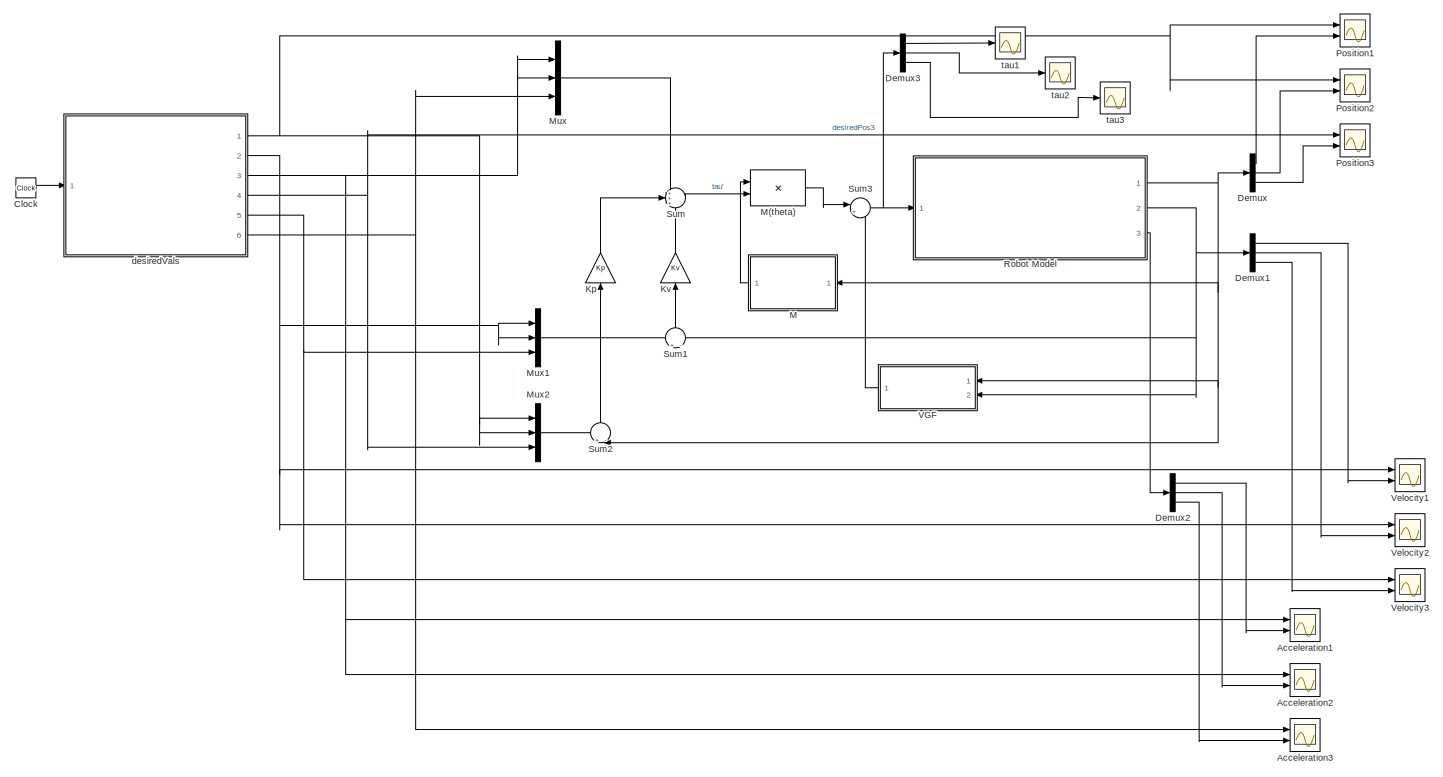
[diagram: root canvas - part 1/1, most of the canvas]
MODEL slx_34e7846e9a22
KIND model
CONFIG AbsTol = auto
CONFIG EnableMultiTasking = off
CONFIG FixedStep = auto
CONFIG MaxStep = auto
CONFIG MinStep = auto
CONFIG RelTol = 1e-3
CONFIG SampleTimeConstraint = Unconstrained
CONFIG SolverName = VariableStepAuto
CONFIG StartTime = 0.0
CONFIG StopTime = 10.0
BLOCK [Scope] Acceleration1
  Floating = off
  NumInputPorts = 2
  Ports = [2]
  ScopeSpecificationString = Simulink.scopes.TimeScopeBlockCfg('CurrentConfiguration', extmgr.ConfigurationSet(extmgr.Configuration('Core','General UI',true),extmgr.Configuration('Core','Source UI',true),extmgr.Configuration('Sources','WiredSimulink',true,'DataLoggingVariableName','ScopeData6'),extmgr.Configuration('Visuals','Time Domain',true,'SerializedDisplays',{struct('MinYLimReal','-742.24281','MaxYLimReal','915.80476','...<+1437ch>
BLOCK [Scope] Acceleration2
  Floating = off
  NumInputPorts = 2
  Ports = [2]
  ScopeSpecificationString = Simulink.scopes.TimeScopeBlockCfg('CurrentConfiguration', extmgr.ConfigurationSet(extmgr.Configuration('Core','General UI',true),extmgr.Configuration('Core','Source UI',true),extmgr.Configuration('Sources','WiredSimulink',true,'DataLoggingVariableName','ScopeData7'),extmgr.Configuration('Visuals','Time Domain',true,'SerializedDisplays',{struct('MinYLimReal','-742.24281','MaxYLimReal','915.80476','...<+1412ch>
BLOCK [Scope] Acceleration3
  Floating = off
  NumInputPorts = 2
  Ports = [2]
  ScopeSpecificationString = Simulink.scopes.TimeScopeBlockCfg('CurrentConfiguration', extmgr.ConfigurationSet(extmgr.Configuration('Core','General UI',true),extmgr.Configuration('Core','Source UI',true),extmgr.Configuration('Sources','WiredSimulink',true,'DataLoggingVariableName','ScopeData8'),extmgr.Configuration('Visuals','Time Domain',true,'SerializedDisplays',{struct('MinYLimReal','-1.77439','MaxYLimReal','13.16012','YLa...<+1427ch>
BLOCK [Clock] Clock
BLOCK [Demux] Demux
  Outputs = 3
  Ports = [1, 3]
BLOCK [Demux] Demux1
  Outputs = 3
  Ports = [1, 3]
BLOCK [Demux] Demux2
  Outputs = 3
  Ports = [1, 3]
BLOCK [Demux] Demux3
  Outputs = 3
  Ports = [1, 3]
BLOCK [Gain] Kp
  Gain = Kp
  Multiplication = Matrix(K*u)
  NameLocation = right
BLOCK [Gain] Kv
  Gain = Kv
  Multiplication = Matrix(K*u)
  NameLocation = right
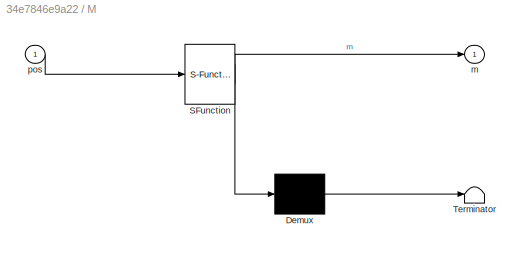
BLOCK [SubSystem] M
  ErrorFcn = Stateflow.Translate.translate
  PermitHierarchicalResolution = ExplicitOnly
  Ports = [1, 1]
  RequestExecContextInheritance = off
  SFBlockType = MATLAB Function
  TreatAsAtomicUnit = on
BLOCK [Product] M(theta)
  Multiplication = Matrix(*)
  Ports = [2, 1]
BLOCK [Demux] M/ Demux 
  Outputs = 1
  Ports = [1, 1]
BLOCK [S-Function] M/ SFunction 
  EnableBusSupport = on
  FunctionName = sf_sfun
  PortCounts = [1 2]
  Ports = [1, 2]
  SFcnIsStateOwnerBlock = off
  SFunctionDeploymentMode = off
  Tag = Stateflow S-Function 2
BLOCK [Terminator] M/ Terminator 
BLOCK [Outport] M/m
BLOCK [Inport] M/pos
BLOCK [Mux] Mux
  DisplayOption = bar
  Inputs = 3
  Ports = [3, 1]
BLOCK [Mux] Mux1
  DisplayOption = bar
  Inputs = 3
  Ports = [3, 1]
BLOCK [Mux] Mux2
  DisplayOption = bar
  Inputs = 3
  Ports = [3, 1]
BLOCK [Scope] Position1
  Floating = off
  NumInputPorts = 2
  Ports = [2]
  ScopeSpecificationString = Simulink.scopes.TimeScopeBlockCfg('CurrentConfiguration', extmgr.ConfigurationSet(extmgr.Configuration('Core','General UI',true),extmgr.Configuration('Core','Source UI',true),extmgr.Configuration('Sources','WiredSimulink',true),extmgr.Configuration('Visuals','Time Domain',true,'SerializedDisplays',{struct('MinYLimReal','-56.25','MaxYLimReal','56.25','YLabelReal','','MinYLimMag','0.00000','MaxYLimM...<+1461ch>
BLOCK [Scope] Position2
  Floating = off
  NumInputPorts = 2
  Ports = [2]
  ScopeSpecificationString = Simulink.scopes.TimeScopeBlockCfg('CurrentConfiguration', extmgr.ConfigurationSet(extmgr.Configuration('Core','General UI',true),extmgr.Configuration('Core','Source UI',true),extmgr.Configuration('Sources','WiredSimulink',true,'DataLoggingVariableName','ScopeData1'),extmgr.Configuration('Visuals','Time Domain',true,'SerializedDisplays',{struct('MinYLimReal','-57.68737','MaxYLimReal','69.18636','YL...<+1473ch>
BLOCK [Scope] Position3
  Floating = off
  NumInputPorts = 2
  Ports = [2]
  ScopeSpecificationString = Simulink.scopes.TimeScopeBlockCfg('CurrentConfiguration', extmgr.ConfigurationSet(extmgr.Configuration('Core','General UI',true),extmgr.Configuration('Core','Source UI',true),extmgr.Configuration('Sources','WiredSimulink',true,'DataLoggingVariableName','ScopeData2'),extmgr.Configuration('Visuals','Time Domain',true,'SerializedDisplays',{struct('MinYLimReal','0.11597','MaxYLimReal','0.43156','YLabe...<+1401ch>
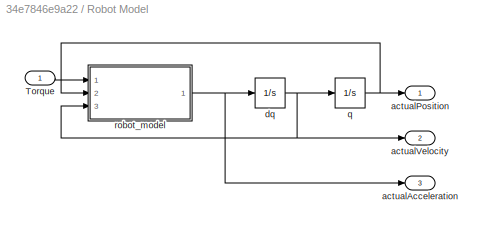
BLOCK [SubSystem] Robot Model
  Ports = [1, 3]
  RequestExecContextInheritance = off
BLOCK [Inport] Robot Model/Torque
BLOCK [Outport] Robot Model/actualAcceleration
  Port = 3
BLOCK [Outport] Robot Model/actualPosition
BLOCK [Outport] Robot Model/actualVelocity
  Port = 2
BLOCK [Integrator] Robot Model/dq
  InitialCondition = [0 0 -1]
  Ports = [1, 1]
BLOCK [Integrator] Robot Model/q
  InitialCondition = [-pi/4 -pi/4 0.4]
  Ports = [1, 1]
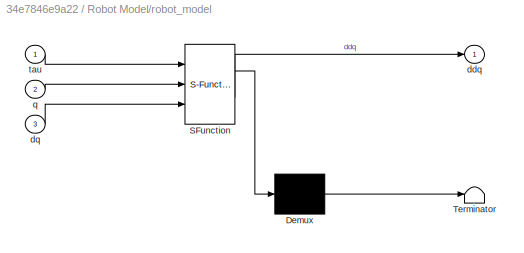
BLOCK [SubSystem] Robot Model/robot_model
  ErrorFcn = Stateflow.Translate.translate
  PermitHierarchicalResolution = ExplicitOnly
  Ports = [3, 1]
  RequestExecContextInheritance = off
  SFBlockType = MATLAB Function
  TreatAsAtomicUnit = on
BLOCK [Demux] Robot Model/robot_model/ Demux 
  Outputs = 1
  Ports = [1, 1]
BLOCK [S-Function] Robot Model/robot_model/ SFunction 
  EnableBusSupport = on
  FunctionName = sf_sfun
  PortCounts = [3 2]
  Ports = [3, 2]
  SFcnIsStateOwnerBlock = off
  SFunctionDeploymentMode = off
  Tag = Stateflow S-Function 1
BLOCK [Terminator] Robot Model/robot_model/ Terminator 
BLOCK [Outport] Robot Model/robot_model/ddq
  VectorParamsAs1DForOutWhenUnconnected = off
BLOCK [Inport] Robot Model/robot_model/dq
  Port = 3
BLOCK [Inport] Robot Model/robot_model/q
  Port = 2
BLOCK [Inport] Robot Model/robot_model/tau
BLOCK [Sum] Sum
  Inputs = +++
  Ports = [3, 1]
BLOCK [Sum] Sum1
  Inputs = +|-
  NameLocation = right
  Ports = [2, 1]
BLOCK [Sum] Sum2
  Inputs = +|-
  NameLocation = right
  Ports = [2, 1]
BLOCK [Sum] Sum3
  Inputs = |++
  Ports = [2, 1]
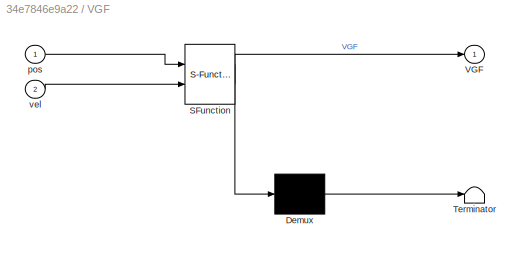
BLOCK [SubSystem] VGF
  ErrorFcn = Stateflow.Translate.translate
  PermitHierarchicalResolution = ExplicitOnly
  Ports = [2, 1]
  RequestExecContextInheritance = off
  SFBlockType = MATLAB Function
  TreatAsAtomicUnit = on
BLOCK [Demux] VGF/ Demux 
  Outputs = 1
  Ports = [1, 1]
BLOCK [S-Function] VGF/ SFunction 
  EnableBusSupport = on
  FunctionName = sf_sfun
  PortCounts = [2 2]
  Ports = [2, 2]
  SFcnIsStateOwnerBlock = off
  SFunctionDeploymentMode = off
  Tag = Stateflow S-Function 4
BLOCK [Terminator] VGF/ Terminator 
BLOCK [Outport] VGF/VGF
BLOCK [Inport] VGF/pos
BLOCK [Inport] VGF/vel
  Port = 2
BLOCK [Scope] Velocity1
  Floating = off
  NumInputPorts = 2
  Ports = [2]
  ScopeSpecificationString = Simulink.scopes.TimeScopeBlockCfg('CurrentConfiguration', extmgr.ConfigurationSet(extmgr.Configuration('Core','General UI',true),extmgr.Configuration('Core','Source UI',true),extmgr.Configuration('Sources','WiredSimulink',true,'DataLoggingVariableName','ScopeData3'),extmgr.Configuration('Visuals','Time Domain',true,'SerializedDisplays',{struct('MinYLimReal','-35.4411','MaxYLimReal','109.13279','YL...<+1457ch>
BLOCK [Scope] Velocity2
  Floating = off
  NumInputPorts = 2
  Ports = [2]
  ScopeSpecificationString = Simulink.scopes.TimeScopeBlockCfg('CurrentConfiguration', extmgr.ConfigurationSet(extmgr.Configuration('Core','General UI',true),extmgr.Configuration('Core','Source UI',true),extmgr.Configuration('Sources','WiredSimulink',true,'DataLoggingVariableName','ScopeData4'),extmgr.Configuration('Visuals','Time Domain',true,'SerializedDisplays',{struct('MinYLimReal','-35.4411','MaxYLimReal','109.13279','YL...<+1402ch>
BLOCK [Scope] Velocity3
  Floating = off
  NumInputPorts = 2
  Ports = [2]
  ScopeSpecificationString = Simulink.scopes.TimeScopeBlockCfg('CurrentConfiguration', extmgr.ConfigurationSet(extmgr.Configuration('Core','General UI',true),extmgr.Configuration('Core','Source UI',true),extmgr.Configuration('Sources','WiredSimulink',true,'DataLoggingVariableName','ScopeData5'),extmgr.Configuration('Visuals','Time Domain',true,'SerializedDisplays',{struct('MinYLimReal','-2.33989','MaxYLimReal','1.059','YLabel...<+1434ch>
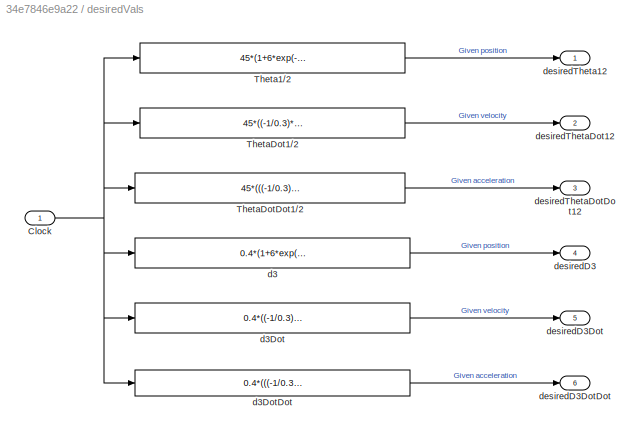
BLOCK [SubSystem] desiredVals
  Ports = [1, 6]
  RequestExecContextInheritance = off
BLOCK [Inport] desiredVals/Clock
BLOCK [Fcn] desiredVals/Theta1//2
  Expr = 45*(1+6*exp(-u/0.3)-8*exp(-u/0.4))
BLOCK [Fcn] desiredVals/ThetaDot1//2
  Expr = 45*((-1/0.3)*6*exp(-u/0.3) - (-1/0.4)*8*exp(-u/0.4))
BLOCK [Fcn] desiredVals/ThetaDotDot1//2
  Expr = 45*(((-1/0.3)^2)*6*exp(-u/0.3) - ((-1/0.4)^2)*8*exp(-u/0.4))
BLOCK [Fcn] desiredVals/d3
  Expr = 0.4*(1+6*exp(-u/0.3)-6*exp(-u/0.4))
BLOCK [Fcn] desiredVals/d3Dot
  Expr = 0.4*((-1/0.3)*6*exp(-u/0.3) - (-1/0.4)*6*exp(-u/0.4))
BLOCK [Fcn] desiredVals/d3DotDot
  Expr = 0.4*(((-1/0.3)^2)*6*exp(-u/0.3) - ((-1/0.4)^2)*6*exp(-u/0.4))
BLOCK [Outport] desiredVals/desiredD3
  Port = 4
BLOCK [Outport] desiredVals/desiredD3Dot
  Port = 5
BLOCK [Outport] desiredVals/desiredD3DotDot
  Port = 6
BLOCK [Outport] desiredVals/desiredTheta12
BLOCK [Outport] desiredVals/desiredThetaDot12
  Port = 2
BLOCK [Outport] desiredVals/desiredThetaDotDot12
  Port = 3
BLOCK [Scope] tau1
  Floating = off
  NumInputPorts = 1
  Ports = [1]
  ScopeSpecificationString = Simulink.scopes.TimeScopeBlockCfg('CurrentConfiguration', extmgr.ConfigurationSet(extmgr.Configuration('Core','General UI',true),extmgr.Configuration('Core','Source UI',true),extmgr.Configuration('Sources','WiredSimulink',true,'DataLoggingVariableName','ScopeData9'),extmgr.Configuration('Visuals','Time Domain',true,'SerializedDisplays',{struct('MinYLimReal','-441.43659','MaxYLimReal','485.9083','Y...<+1407ch>
BLOCK [Scope] tau2
  Floating = off
  NumInputPorts = 1
  Ports = [1]
  ScopeSpecificationString = Simulink.scopes.TimeScopeBlockCfg('CurrentConfiguration', extmgr.ConfigurationSet(extmgr.Configuration('Core','General UI',true),extmgr.Configuration('Core','Source UI',true),extmgr.Configuration('Sources','WiredSimulink',true,'DataLoggingVariableName','ScopeData10'),extmgr.Configuration('Visuals','Time Domain',true,'SerializedDisplays',{struct('MinYLimReal','-358.52392','MaxYLimReal','300.55125',...<+1382ch>
BLOCK [Scope] tau3
  Floating = off
  NumInputPorts = 1
  Ports = [1]
  ScopeSpecificationString = Simulink.scopes.TimeScopeBlockCfg('CurrentConfiguration', extmgr.ConfigurationSet(extmgr.Configuration('Core','General UI',true),extmgr.Configuration('Core','Source UI',true),extmgr.Configuration('Sources','WiredSimulink',true,'DataLoggingVariableName','ScopeData11'),extmgr.Configuration('Visuals','Time Domain',true,'SerializedDisplays',{struct('MinYLimReal','-2353.37647','MaxYLimReal','279.66037'...<+1388ch>
LINE Clock:1 -> desiredVals:1
LINE Demux1:1 -> Velocity1:2
LINE Demux1:2 -> Velocity2:2
LINE Demux1:3 -> Velocity3:2
LINE Demux2:1 -> Acceleration1:2
LINE Demux2:2 -> Acceleration2:2
LINE Demux2:3 -> Acceleration3:2
LINE Demux3:1 -> tau1:1
LINE Demux3:2 -> tau2:1
LINE Demux3:3 -> tau3:1
LINE Demux:1 -> Position1:2
LINE Demux:2 -> Position2:2
LINE Demux:3 -> Position3:2
LINE Kp:1 -> Sum:2
LINE Kv:1 -> Sum:3
LINE M(theta):1 -> Sum3:1
LINE M:1 -> M(theta):1
LINE Mux1:1 -> Sum1:1
LINE Mux2:1 -> Sum2:1
LINE Mux:1 -> Sum:1
LINE Robot Model/Torque:1 -> Robot Model/robot_model:1
NET Robot Model/dq:1 -> Robot Model/actualVelocity:1, Robot Model/q:1, Robot Model/robot_model:3
NET Robot Model/q:1 -> Robot Model/actualPosition:1, Robot Model/robot_model:2
NET Robot Model/robot_model:1 -> Robot Model/actualAcceleration:1, Robot Model/dq:1
NET Robot Model:1 -> Demux:1, M:1, Sum2:2, VGF:1
NET Robot Model:2 -> Demux1:1, Sum1:2, VGF:2
LINE Robot Model:3 -> Demux2:1
LINE Sum1:1 -> Kv:1
LINE Sum2:1 -> Kp:1
NET Sum3:1 -> Demux3:1, Robot Model:1
LINE Sum:1 -> M(theta):2
LINE VGF:1 -> Sum3:2
NET desiredVals/Clock:1 -> desiredVals/Theta1//2:1, desiredVals/ThetaDot1//2:1, desiredVals/ThetaDotDot1//2:1, desiredVals/d3:1, desiredVals/d3Dot:1, desiredVals/d3DotDot:1
LINE desiredVals/Theta1//2:1 -> desiredVals/desiredTheta12:1
LINE desiredVals/ThetaDot1//2:1 -> desiredVals/desiredThetaDot12:1
LINE desiredVals/ThetaDotDot1//2:1 -> desiredVals/desiredThetaDotDot12:1
LINE desiredVals/d3:1 -> desiredVals/desiredD3:1
LINE desiredVals/d3Dot:1 -> desiredVals/desiredD3Dot:1
LINE desiredVals/d3DotDot:1 -> desiredVals/desiredD3DotDot:1
NET desiredVals:1 -> Mux2:1, Mux2:2, Position1:1, Position2:1
NET desiredVals:2 -> Mux1:1, Mux1:2, Velocity1:1, Velocity2:1
NET desiredVals:3 -> Acceleration1:1, Acceleration2:1, Mux:1, Mux:2
NET desiredVals:4 -> Mux2:3, Position3:1
NET desiredVals:5 -> Mux1:3, Velocity3:1
NET desiredVals:6 -> Acceleration3:1, Mux:3
note: NET lines group one-source signal fan-out (src -> all destinations, sorted); 1:1 wires keep LINE
CHART Robot Model/robot_model states=1 transitions=1
  STATE_LABEL 'eML_blk_kernel()'
  STATE_LABEL 'SCRIPT:\nfunction ddq = robot_model(tau,q,dq)\nddq=zeros(3,1);\nth1=q(1); dth1=dq(1);\nth2=q(2); dth2=dq(2);\nf=q(3); df=dq(3);\nm1=0.08+4*f^2*(sin(th2))^2;\nm2=-0.4*f*cos(th2);\nm3=-0.2*sin(th2);\nm4=4*f^2;\nm5=0;\nm6=2;\n\ninvM = inv([m1 m2 m3; m2 m4 m5; m3 m5 m6]);\nsize(tau)\n\nV=[0.4*dth2^2*f*sin(th2)-0.4*df*dth2*cos(th2)+8*dth1*dth2*f^2*cos(th2)*sin(th2)+4*df*dth1*f*(sin(th2))^2;...\n    -4*dth1^2*f^2*cos(th...<+133ch>'
CHART M states=1 transitions=1
  STATE_LABEL 'eML_blk_kernel()'
  STATE_LABEL 'SCRIPT:\nfunction m = interiaMatrix(pos)\n\ntheta1 = pos(1); %theta1\ntheta2 = pos(2); %theta2\nd3 = pos(3); %d3\n\n% Calculate m\nm1=0.08+4*d3^2*(sin(theta2))^2;\nm2=-0.4*d3*cos(theta2);\nm3=-0.2*sin(theta2);\nm4=4*d3^2;\nm5=0;\nm6=2;\n\nm = [m1 m2 m3; m2 m4 m5; m3 m5 m6];'
CHART VGF states=1 transitions=1
  STATE_LABEL 'eML_blk_kernel()'
  STATE_LABEL 'SCRIPT:\nfunction VGF = calculateVGF(pos,vel)\n\ntheta1 = pos(1); %theta1\ntheta2 = pos(2); %theta2\nd3 = pos(3); %d3\ntheta1_dot = vel(1); % theta1Dot\ntheta2_dot = vel(2); % theta2Dot\nd3_dot = vel(3); % d3Dot\n\n% Calculate V\nV=[0.4*theta2_dot^2*d3*sin(theta2)-0.4*d3_dot*theta2_dot*cos(theta2)+8*theta1_dot*theta2_dot*d3^2*cos(theta2)*sin(theta2)+4*d3_dot*theta1_dot*d3*(sin(theta2))^2;...\n    -4*theta1_do...<+193ch>'
CHART  states=0 transitions=0
CHART  states=0 transitions=0
CHART  states=0 transitions=0
